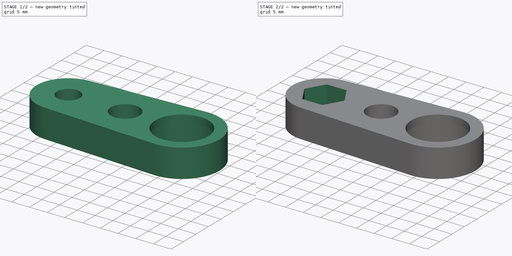
[diagram: build sequence overview — one tinted view per stage of 2, left to right]
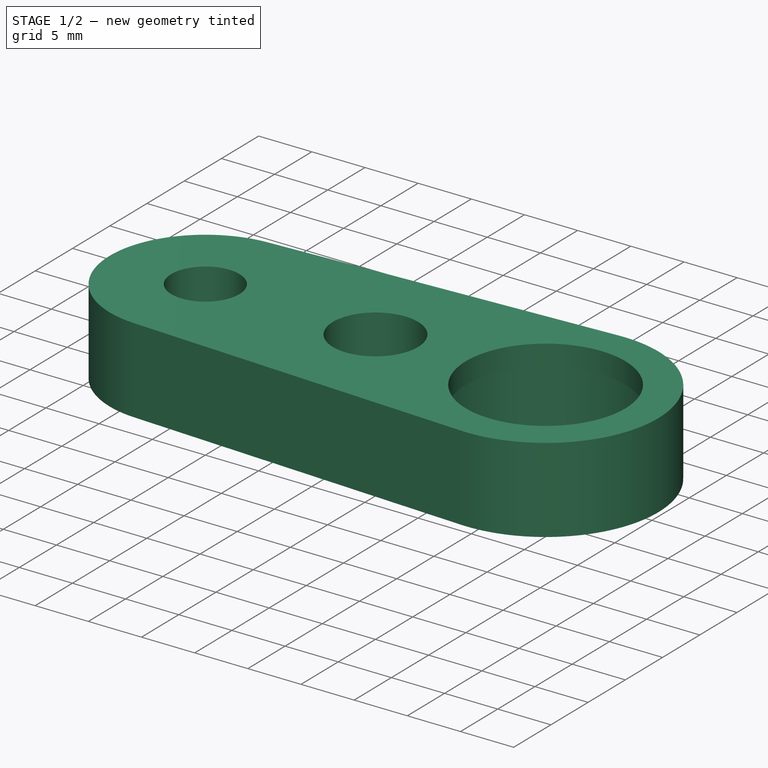
[diagram: stage 1 of 2 — iso view after this stage's code; geometry added in this stage tinted green]
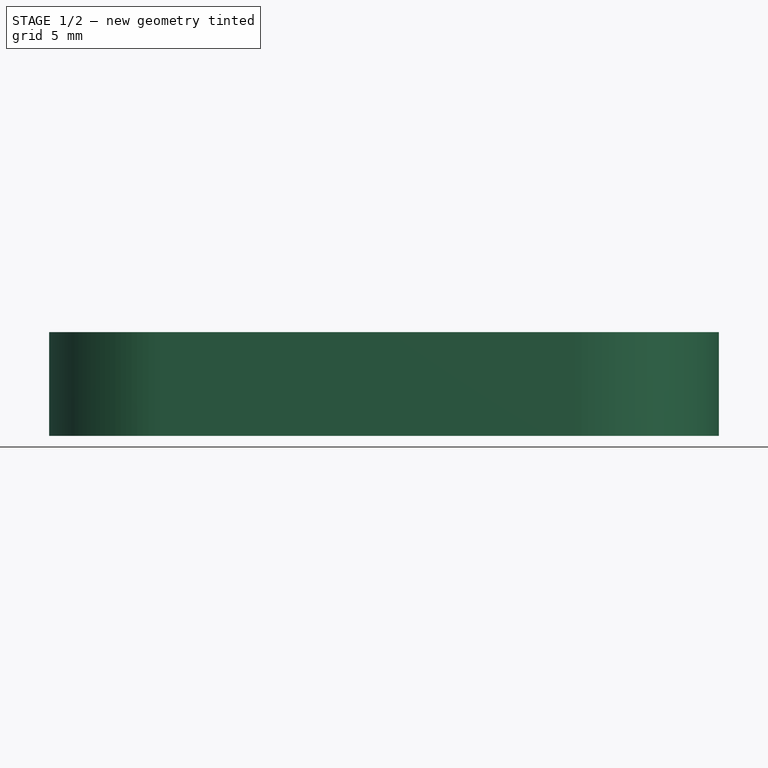
[diagram: stage 1 of 2 — front view after this stage's code; geometry added in this stage tinted green]
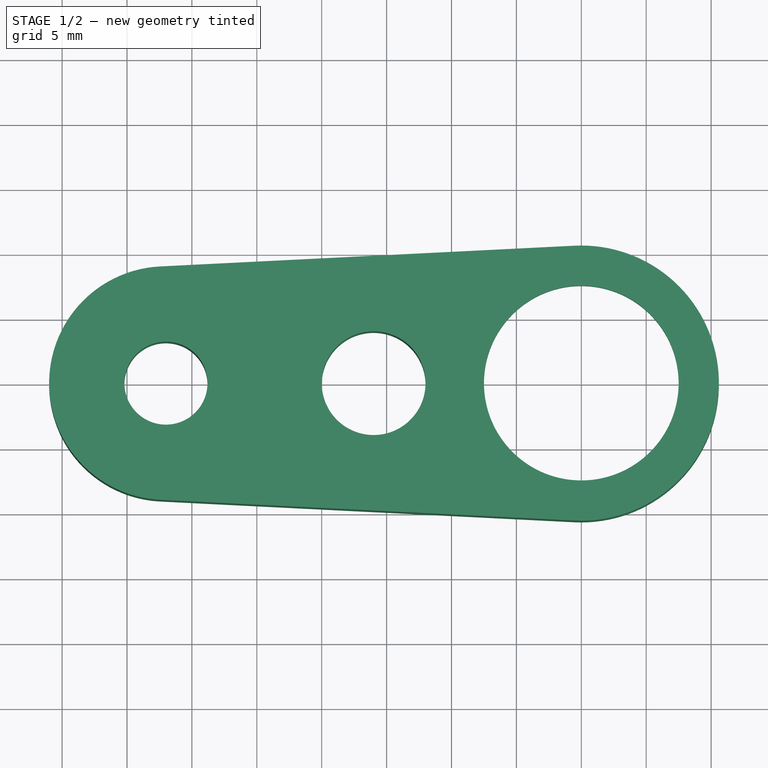
[diagram: stage 1 of 2 — top view after this stage's code; geometry added in this stage tinted green]
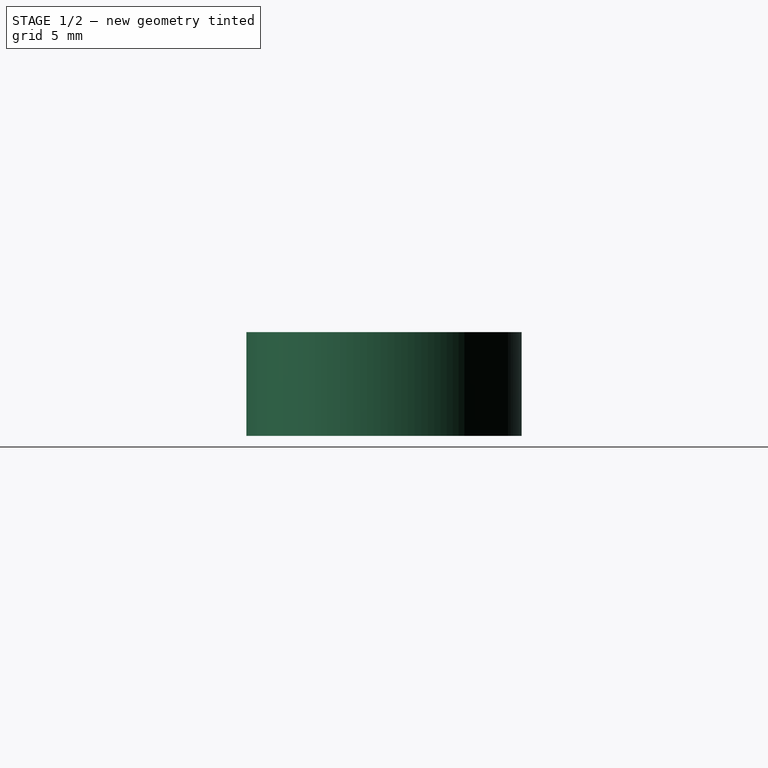
[diagram: stage 1 of 2 — right view after this stage's code; geometry added in this stage tinted green]
FCSTD DOCUMENT  (FreeCAD 0.16R6706 (Git))
Label: DriveLink_15mm
License: All rights reserved
LicenseURL: http://en.wikipedia.org/wiki/All_rights_reserved
objects: Sketcher::SketchObject×3, PartDesign::Pocket×2, PartDesign::Pad×1
note: 9 computed .brp shape members not serialized (recipe doc carries the construction recipe); baked Part::Feature solids carry a one-line shape summary decoded from their .brp

FEATURE [Sketcher::SketchObject] Sketch
  sketch-geometry (9):
    g0: ArcOfCircle CenterX=-32 CenterY=0 CenterZ=0 NormalX=0 NormalY=0 NormalZ=1 Radius=9 StartAngle=1.62082 EndAngle=4.66237
    g1: ArcOfCircle CenterX=0 CenterY=0 CenterZ=0 NormalX=0 NormalY=0 NormalZ=1 Radius=10.6 StartAngle=4.66237 EndAngle=7.904
    g2: LineSegment StartX=-32.45 StartY=-8.98874 StartZ=0 EndX=-0.53 EndY=-10.5867 EndZ=0
    g3: LineSegment StartX=-32.45 StartY=8.98874 StartZ=0 EndX=-0.53 EndY=10.5867 EndZ=0
    g4: Circle CenterX=-32 CenterY=0 CenterZ=0 NormalX=0 NormalY=0 NormalZ=1 Radius=3.2
    g5: Circle CenterX=0 CenterY=0 CenterZ=0 NormalX=0 NormalY=0 NormalZ=1 Radius=7.5
    g6: Circle [constr] CenterX=0 CenterY=0 CenterZ=0 NormalX=0 NormalY=0 NormalZ=1 Radius=8.6
    g7: Circle [constr] CenterX=-32 CenterY=0 CenterZ=0 NormalX=0 NormalY=0 NormalZ=1 Radius=7.5
    g8: Circle CenterX=-16 CenterY=0 CenterZ=0 NormalX=0 NormalY=0 NormalZ=1 Radius=4
  constraints (20):
    c: Tangent(g0,g3) = 1.5708
    c: Tangent(g0,g2) = -1.5708
    c: Tangent(g2,g1) = -1.5708
    c: Tangent(g3,g1) = 1.5708
    c: DistanceX(g0,g-1) = 32
    c: Coincident(g4,g0)
    c: Radius(g4) = 3.2
    c: Coincident(g1,g-1)
    c: Radius(g0) = 9
    c: Coincident(g5,g-1)
    c: Radius(g5) = 7.5
    c: Coincident(g6,g-1)
    c: Radius(g6) = 8.6
    c: Radius(g1) = 10.6
    c: Coincident(g7,g0)
    c: PointOnObject(g0,g-1)
    c: Radius(g7) = 7.5
    c: PointOnObject(g8,g-1)
    c: Radius(g8) = 4
    c: DistanceX(g8,g-1) = 16
FEATURE [PartDesign::Pad] Pad
  Length = 8
  Length2 = 100
  Sketch = -> Sketch
  Type = 0
FEATURE [Sketcher::SketchObject] Sketch001
  Placement = pos=(0,0,0) rot=(1,0,0;3.14159rad)
  Support = -> Pad [Face8]
  sketch-geometry (1):
    g0: Circle CenterX=0 CenterY=0 CenterZ=0 NormalX=0 NormalY=0 NormalZ=1 Radius=8.6
  constraints (2):
    c: Coincident(g0,g-1)
    c: Radius(g0) = 8.6
FEATURE [PartDesign::Pocket] Pocket
  Length = 6
  Sketch = -> Sketch001
  Type = 0
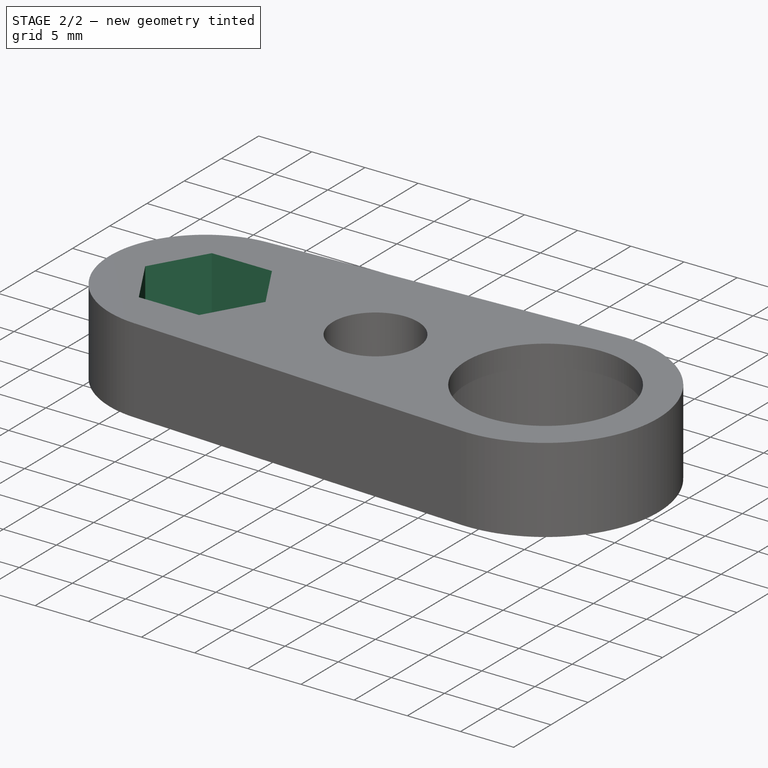
[diagram: stage 2 of 2 — iso view after this stage's code; geometry added in this stage tinted green]
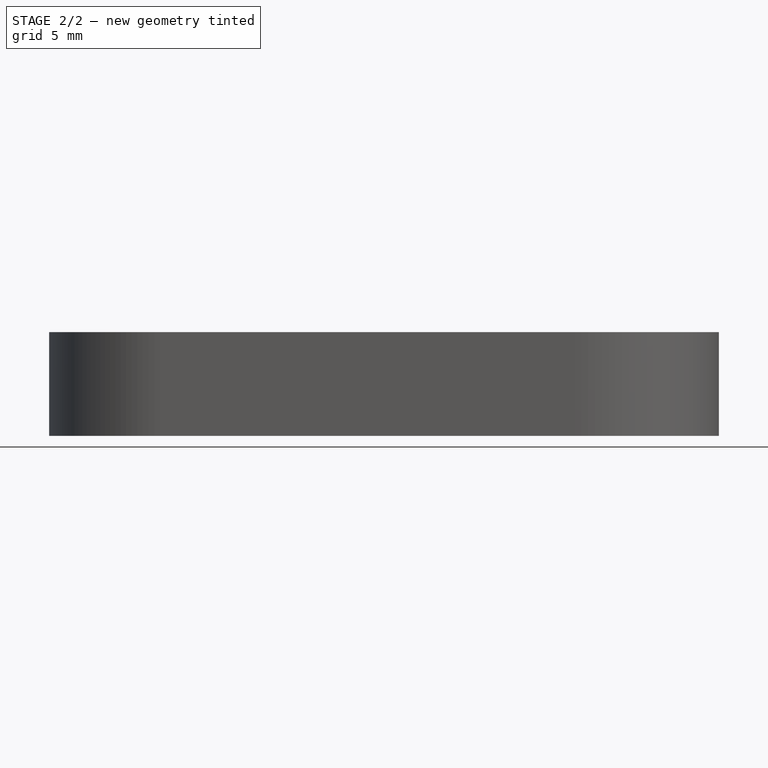
[diagram: stage 2 of 2 — front view after this stage's code; geometry added in this stage tinted green]
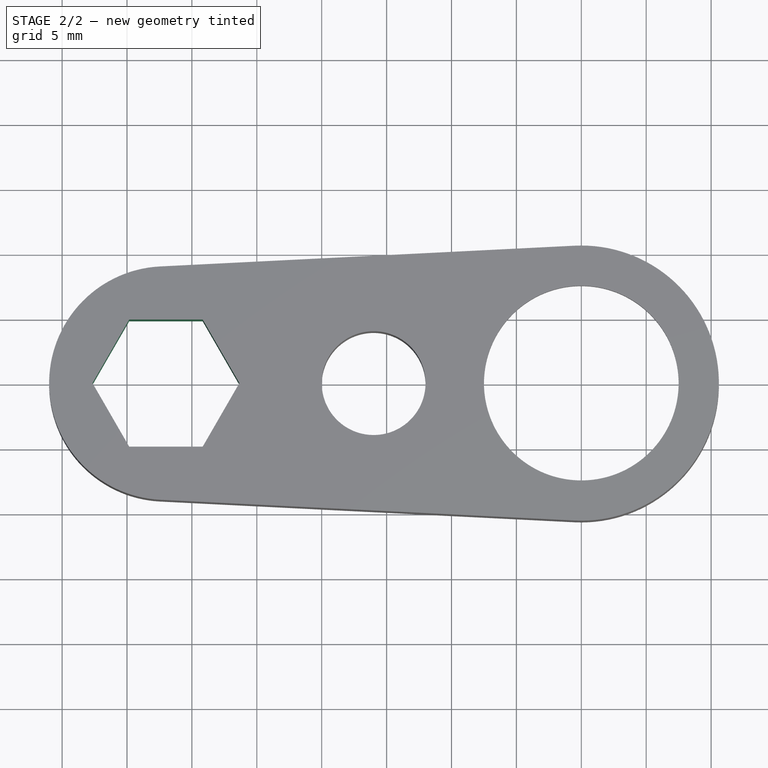
[diagram: stage 2 of 2 — top view after this stage's code; geometry added in this stage tinted green]
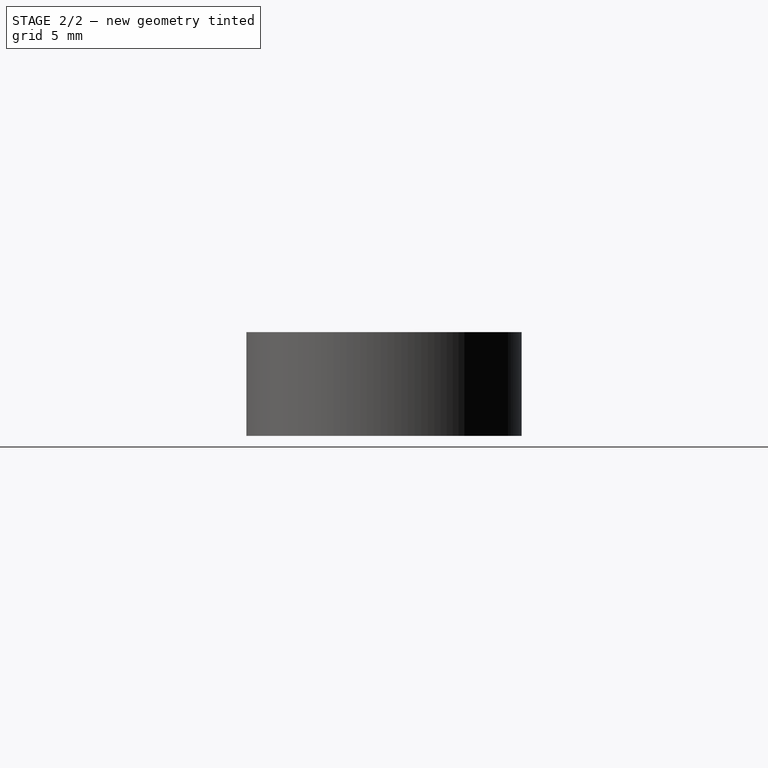
[diagram: stage 2 of 2 — right view after this stage's code; geometry added in this stage tinted green]
FEATURE [Sketcher::SketchObject] Sketch002
  Placement = pos=(0,0,0) rot=(1,0,0;3.14159rad)
  Support = -> Pocket [Face4]
  sketch-geometry (8):
    g0: Circle [constr] CenterX=-32 CenterY=0 CenterZ=0 NormalX=0 NormalY=0 NormalZ=1 Radius=7.5
    g1: LineSegment StartX=-34.829 StartY=4.9 StartZ=0 EndX=-37.658 EndY=-1e-12 EndZ=0
    g2: LineSegment StartX=-37.658 StartY=-1e-12 StartZ=0 EndX=-34.829 EndY=-4.9 EndZ=0
    g3: LineSegment StartX=-34.829 StartY=-4.9 StartZ=0 EndX=-29.171 EndY=-4.9 EndZ=0
    g4: LineSegment StartX=-29.171 StartY=-4.9 StartZ=0 EndX=-26.342 EndY=-1e-12 EndZ=0
    g5: LineSegment StartX=-26.342 StartY=-1e-12 StartZ=0 EndX=-29.171 EndY=4.9 EndZ=0
    g6: LineSegment StartX=-29.171 StartY=4.9 StartZ=0 EndX=-34.829 EndY=4.9 EndZ=0
    g7: Circle [constr] CenterX=-32 CenterY=0 CenterZ=0 NormalX=0 NormalY=0 NormalZ=1 Radius=5.65803
  constraints (19):
    c: PointOnObject(g0,g-1)
    c: DistanceX(g0,g-1) = 32
    c: Radius(g0) = 7.5
    c: Coincident(g1,g2)
    c: Coincident(g2,g3)
    c: Coincident(g3,g4)
    c: Coincident(g4,g5)
    c: Coincident(g5,g6)
    c: Coincident(g6,g1)
    c: Equal(g1, g2-g6) x5
    c: PointOnObject(g1,g7)
    c: PointOnObject(g2,g7)
    c: PointOnObject(g3,g7)
    c: PointOnObject(g4,g7)
    c: PointOnObject(g5,g7)
    c: PointOnObject(g6,g7)
    c: Coincident(g7,g0)
    c: Horizontal(g3)
    c: DistanceY(g3,g5) = 9.8
FEATURE [PartDesign::Pocket] Pocket001
  Length = 5
  Sketch = -> Sketch002
  Type = 1
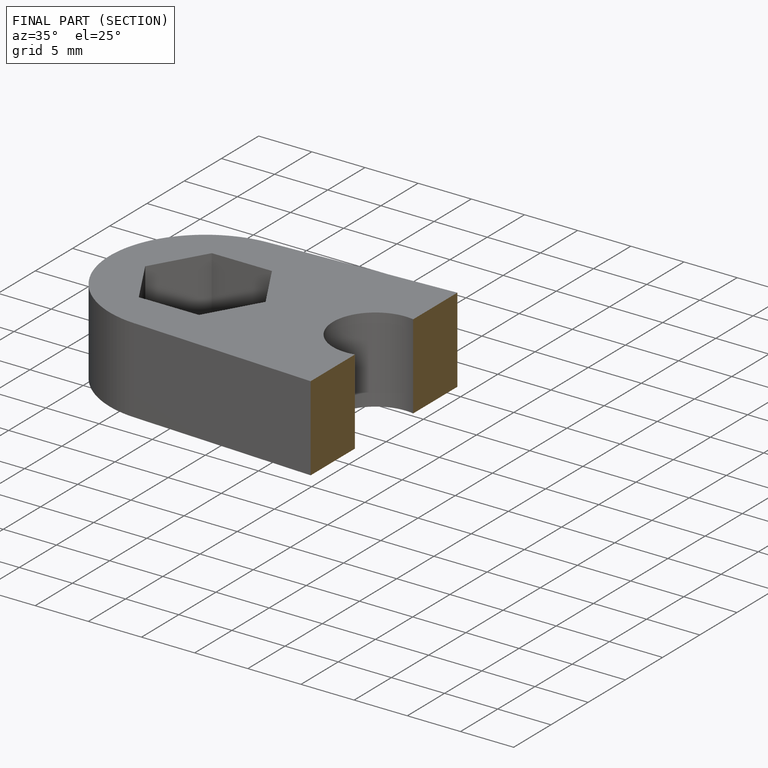
[diagram: finished part — half-section view (interior)]
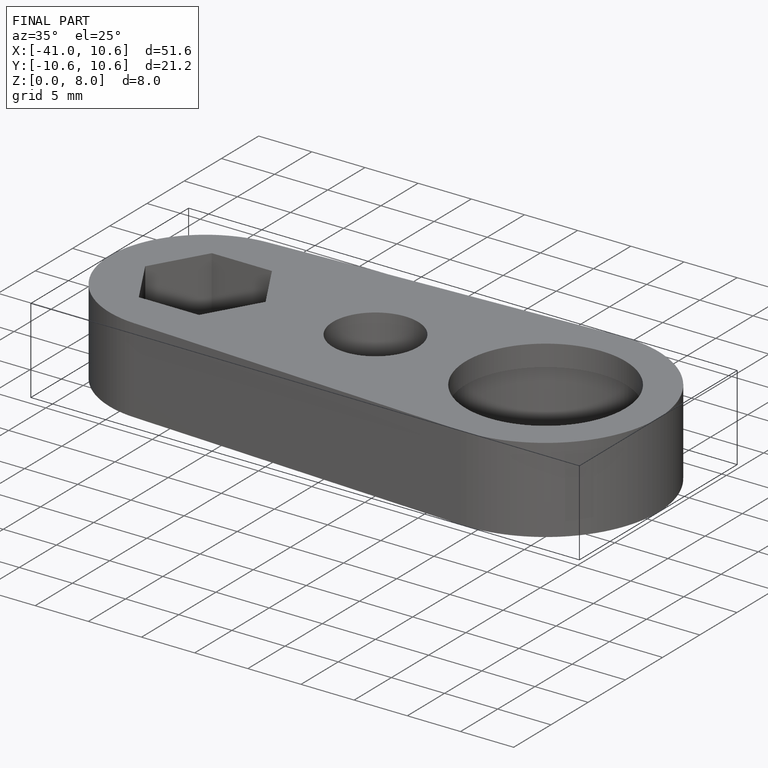
[diagram: finished part — iso view with bounding-box wireframe]
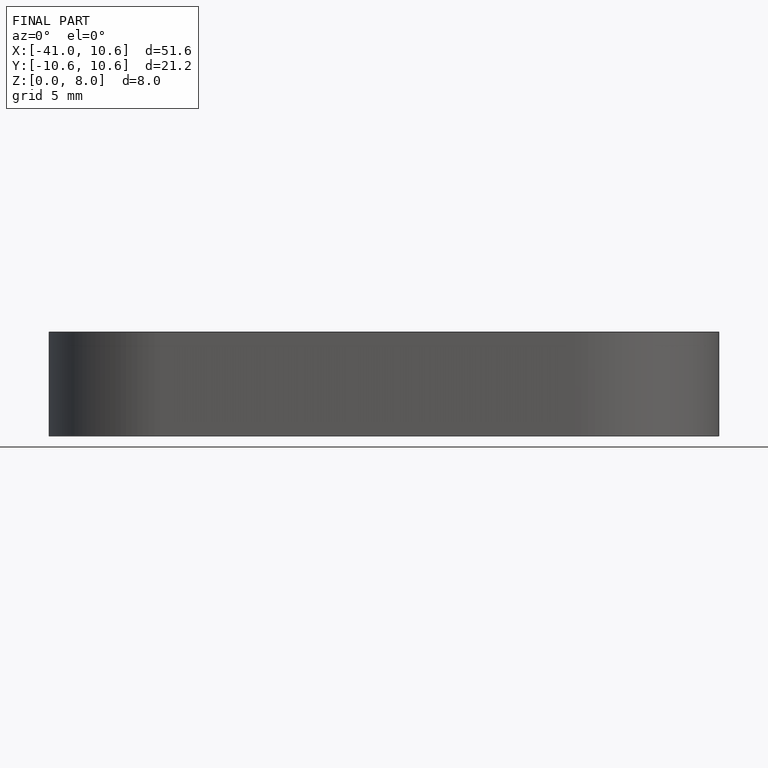
[diagram: finished part — front view with bounding-box wireframe]
